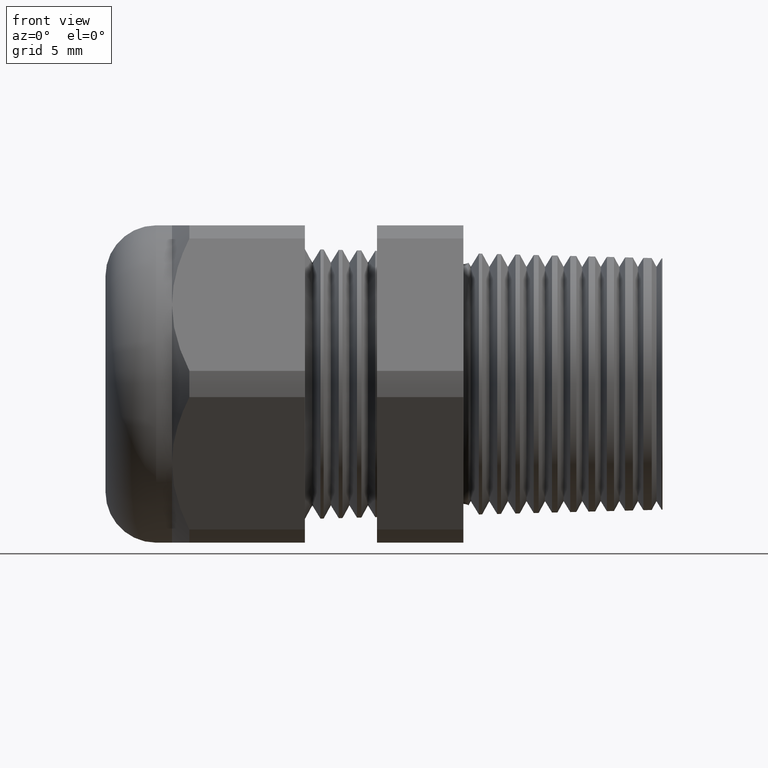
[diagram: clean part render]
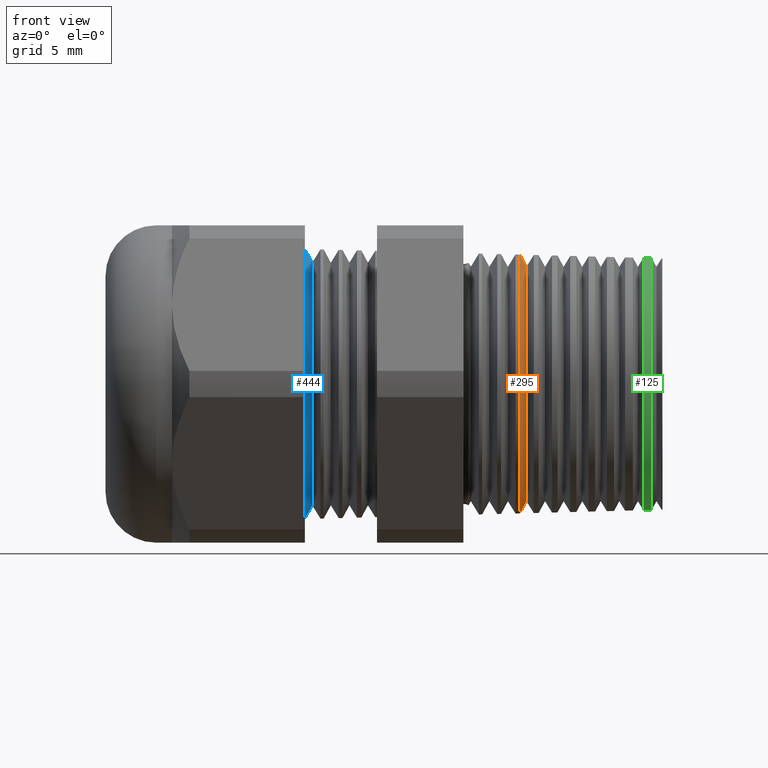
[diagram: same view with three faces highlighted in distinct colors, each labeled with its STEP entity id]
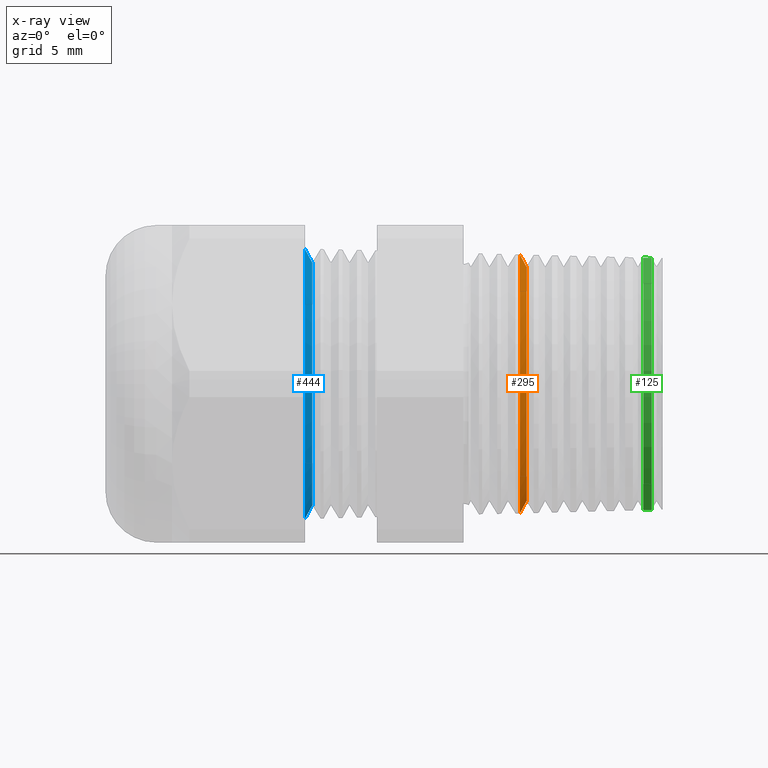
[diagram: x-ray of the same camera — body ghosted, the three highlighted faces saturated]
A machine part, front view with three faces highlighted in distinct colors.
The next image is the same camera in x-ray (body ghosted, the three faces saturated) — at least one of them is partly hidden behind the body in this view.
Their STEP definitions:

[orange] entity #295 — the highlighted conical surface has half-angle 61.5 deg.
#135 = EDGE_CURVE ( 'NONE', #3967, #3960, #993, .T. ) ;
#295 = ADVANCED_FACE ( 'NONE', ( #1293 ), #1288, .T. ) ;
#296 = EDGE_LOOP ( 'NONE', ( #297, #343, #345, #346 ) ) ;
#297 = ORIENTED_EDGE ( 'NONE', *, *, #3897, .F. ) ;
#343 = ORIENTED_EDGE ( 'NONE', *, *, #344, .F. ) ;
#344 = EDGE_CURVE ( 'NONE', #3968, #3964, #1361, .T. ) ;
#345 = ORIENTED_EDGE ( 'NONE', *, *, #3933, .T. ) ;
#346 = ORIENTED_EDGE ( 'NONE', *, *, #135, .T. ) ;
#993 = CIRCLE ( 'NONE', #1057, 0.3833240564830958100 ) ;
#1054 = DIRECTION ( 'NONE',  ( 0.0000000000000000000, 0.0000000000000000000, 1.000000000000000000 ) ) ;
#1055 = DIRECTION ( 'NONE',  ( 1.000000000000000000, 0.0000000000000000000, 0.0000000000000000000 ) ) ;
#1056 = CARTESIAN_POINT ( 'NONE',  ( -0.1426202286626725200, 0.0000000000000000000, 0.0000000000000000000 ) ) ;
#1057 = AXIS2_PLACEMENT_3D ( 'NONE', #1056, #1055, #1054 ) ;
#1284 = DIRECTION ( 'NONE',  ( -1.000000000000000000, 0.0000000000000000000, 0.0000000000000000000 ) ) ;
#1285 = CARTESIAN_POINT ( 'NONE',  ( -0.1449999999999999600, 0.0000000000000000000, 0.0000000000000000000 ) ) ;
#1286 = AXIS2_PLACEMENT_3D ( 'NONE', #1285, #1284, #1347 ) ;
#1288 = CONICAL_SURFACE ( 'NONE', #1286, 0.3877070500476024800, 1.073377489976514900 ) ;
#1293 = FACE_OUTER_BOUND ( 'NONE', #296, .T. ) ;
#1347 = DIRECTION ( 'NONE',  ( 0.0000000000000000000, 0.0000000000000000000, 1.000000000000000000 ) ) ;
#1358 = DIRECTION ( 'NONE',  ( 0.0000000000000000000, 0.0000000000000000000, -1.000000000000000000 ) ) ;
#1359 = DIRECTION ( 'NONE',  ( 1.000000000000000000, 0.0000000000000000000, 0.0000000000000000000 ) ) ;
#1360 = AXIS2_PLACEMENT_3D ( 'NONE', #1366, #1359, #1358 ) ;
#1361 = CIRCLE ( 'NONE', #1360, 0.3471162263224957200 ) ;
#1366 = CARTESIAN_POINT ( 'NONE',  ( -0.1229609809054342900, 0.0000000000000000000, 0.0000000000000000000 ) ) ;
#2877 = DIRECTION ( 'NONE',  ( -0.4771587602596063500, 1.076240564057396000E-016, -0.8788171126619663800 ) ) ;
#2878 = VECTOR ( 'NONE', #2877, 39.37007874015748900 ) ;
#2879 = CARTESIAN_POINT ( 'NONE',  ( -0.1449999999999999600, 4.748041978476590400E-017, -0.3877070500476024800 ) ) ;
#2880 = LINE ( 'NONE', #2879, #2878 ) ;
#2987 = DIRECTION ( 'NONE',  ( -0.4771587602596063500, 0.0000000000000000000, 0.8788171126619663800 ) ) ;
#2988 = VECTOR ( 'NONE', #2987, 39.37007874015748900 ) ;
#2989 = CARTESIAN_POINT ( 'NONE',  ( -0.1449999999999999600, 0.0000000000000000000, 0.3877070500476024800 ) ) ;
#2990 = LINE ( 'NONE', #2989, #2988 ) ;
#3000 = CARTESIAN_POINT ( 'NONE',  ( -0.1426202286626725200, 4.696441396846036300E-017, -0.3833240564830958100 ) ) ;
#3047 = CARTESIAN_POINT ( 'NONE',  ( -0.1229609809054342900, 0.0000000000000000000, 0.3471162263224957200 ) ) ;
#3048 = CARTESIAN_POINT ( 'NONE',  ( -0.1426202286626725200, 0.0000000000000000000, 0.3833240564830958100 ) ) ;
#3054 = CARTESIAN_POINT ( 'NONE',  ( -0.1229609809054342900, 4.472656771530776100E-017, -0.3471162263224957200 ) ) ;
#3897 = EDGE_CURVE ( 'NONE', #3964, #3960, #2880, .T. ) ;
#3933 = EDGE_CURVE ( 'NONE', #3968, #3967, #2990, .T. ) ;
#3960 = VERTEX_POINT ( 'NONE', #3000 ) ;
#3964 = VERTEX_POINT ( 'NONE', #3054 ) ;
#3967 = VERTEX_POINT ( 'NONE', #3048 ) ;
#3968 = VERTEX_POINT ( 'NONE', #3047 ) ;

[blue] entity #444 — the highlighted conical surface has half-angle 61.5 deg.
#441 = EDGE_CURVE ( 'NONE', #3443, #3427, #1542, .T. ) ;
#444 = ADVANCED_FACE ( 'NONE', ( #1538 ), #1537, .T. ) ;
#445 = EDGE_LOOP ( 'NONE', ( #446, #447, #448, #449 ) ) ;
#446 = ORIENTED_EDGE ( 'NONE', *, *, #3444, .F. ) ;
#447 = ORIENTED_EDGE ( 'NONE', *, *, #441, .F. ) ;
#448 = ORIENTED_EDGE ( 'NONE', *, *, #3599, .T. ) ;
#449 = ORIENTED_EDGE ( 'NONE', *, *, #450, .T. ) ;
#450 = EDGE_CURVE ( 'NONE', #3600, #3442, #1536, .T. ) ;
#1482 = CARTESIAN_POINT ( 'NONE',  ( -0.7574097998030713300, 0.0000000000000000000, 0.0000000000000000000 ) ) ;
#1528 = DIRECTION ( 'NONE',  ( 0.0000000000000000000, 0.0000000000000000000, -1.000000000000000000 ) ) ;
#1529 = DIRECTION ( 'NONE',  ( 1.000000000000000000, 0.0000000000000000000, 0.0000000000000000000 ) ) ;
#1530 = CARTESIAN_POINT ( 'NONE',  ( -0.7794488188976376200, 0.0000000000000000000, 0.0000000000000000000 ) ) ;
#1531 = AXIS2_PLACEMENT_3D ( 'NONE', #1530, #1529, #1528 ) ;
#1532 = DIRECTION ( 'NONE',  ( 0.0000000000000000000, 0.0000000000000000000, 1.000000000000000000 ) ) ;
#1533 = DIRECTION ( 'NONE',  ( -1.000000000000000000, 0.0000000000000000000, 0.0000000000000000000 ) ) ;
#1534 = CARTESIAN_POINT ( 'NONE',  ( -0.7794488188976376200, 0.0000000000000000000, 0.0000000000000000000 ) ) ;
#1535 = AXIS2_PLACEMENT_3D ( 'NONE', #1534, #1533, #1532 ) ;
#1536 = CIRCLE ( 'NONE', #1531, 0.3999999999999999700 ) ;
#1537 = CONICAL_SURFACE ( 'NONE', #1535, 0.3999999999999999700, 1.073377489976500500 ) ;
#1538 = FACE_OUTER_BOUND ( 'NONE', #445, .T. ) ;
#1539 = DIRECTION ( 'NONE',  ( 0.0000000000000000000, 0.0000000000000000000, -1.000000000000000000 ) ) ;
#1540 = DIRECTION ( 'NONE',  ( 1.000000000000000000, 0.0000000000000000000, 0.0000000000000000000 ) ) ;
#1541 = AXIS2_PLACEMENT_3D ( 'NONE', #1482, #1540, #1539 ) ;
#1542 = CIRCLE ( 'NONE', #1541, 0.3594091762748933800 ) ;
#2003 = CARTESIAN_POINT ( 'NONE',  ( -0.7574097998030713300, 0.0000000000000000000, -0.3594091762748933800 ) ) ;
#2028 = DIRECTION ( 'NONE',  ( -0.4771587602596191200, 1.076240564057387800E-016, -0.8788171126619595000 ) ) ;
#2029 = VECTOR ( 'NONE', #2028, 39.37007874015748100 ) ;
#2030 = CARTESIAN_POINT ( 'NONE',  ( -0.7794488188976376200, 4.898587196589412500E-017, -0.3999999999999999700 ) ) ;
#2031 = LINE ( 'NONE', #2030, #2029 ) ;
#2032 = CARTESIAN_POINT ( 'NONE',  ( -0.7574097998030713300, 4.642636718654026900E-017, 0.3594091762748933800 ) ) ;
#2033 = CARTESIAN_POINT ( 'NONE',  ( -0.7794488188976376200, 4.898587196589412500E-017, -0.3999999999999999700 ) ) ;
#2363 = CARTESIAN_POINT ( 'NONE',  ( -0.7794488188976376200, 0.0000000000000000000, 0.3999999999999999700 ) ) ;
#2364 = DIRECTION ( 'NONE',  ( -0.4771587602596191200, 0.0000000000000000000, 0.8788171126619595000 ) ) ;
#2365 = VECTOR ( 'NONE', #2364, 39.37007874015748100 ) ;
#2366 = CARTESIAN_POINT ( 'NONE',  ( -0.7794488188976376200, 0.0000000000000000000, 0.3999999999999999700 ) ) ;
#2371 = LINE ( 'NONE', #2366, #2365 ) ;
#3427 = VERTEX_POINT ( 'NONE', #2003 ) ;
#3442 = VERTEX_POINT ( 'NONE', #2033 ) ;
#3443 = VERTEX_POINT ( 'NONE', #2032 ) ;
#3444 = EDGE_CURVE ( 'NONE', #3427, #3442, #2031, .T. ) ;
#3599 = EDGE_CURVE ( 'NONE', #3443, #3600, #2371, .T. ) ;
#3600 = VERTEX_POINT ( 'NONE', #2363 ) ;

[green] entity #125 — the highlighted conical surface has half-angle 1.5 deg.
#106 = ORIENTED_EDGE ( 'NONE', *, *, #107, .F. ) ;
#107 = EDGE_CURVE ( 'NONE', #3777, #3774, #991, .T. ) ;
#125 = ADVANCED_FACE ( 'NONE', ( #1010 ), #1009, .T. ) ;
#126 = EDGE_LOOP ( 'NONE', ( #127, #128, #130, #106 ) ) ;
#127 = ORIENTED_EDGE ( 'NONE', *, *, #3685, .F. ) ;
#128 = ORIENTED_EDGE ( 'NONE', *, *, #129, .F. ) ;
#129 = EDGE_CURVE ( 'NONE', #3763, #3844, #1003, .T. ) ;
#130 = ORIENTED_EDGE ( 'NONE', *, *, #3519, .T. ) ;
#987 = DIRECTION ( 'NONE',  ( 0.0000000000000000000, 0.0000000000000000000, -1.000000000000000000 ) ) ;
#988 = DIRECTION ( 'NONE',  ( -1.000000000000000000, 0.0000000000000000000, 0.0000000000000000000 ) ) ;
#989 = CARTESIAN_POINT ( 'NONE',  ( 0.2233544997452917300, 0.0000000000000000000, 0.0000000000000000000 ) ) ;
#990 = AXIS2_PLACEMENT_3D ( 'NONE', #989, #988, #987 ) ;
#991 = CIRCLE ( 'NONE', #990, 0.3737406709487030000 ) ;
#1000 = DIRECTION ( 'NONE',  ( 0.0000000000000000000, 0.0000000000000000000, 1.000000000000000000 ) ) ;
#1001 = DIRECTION ( 'NONE',  ( 1.000000000000000000, 0.0000000000000000000, 0.0000000000000000000 ) ) ;
#1002 = AXIS2_PLACEMENT_3D ( 'NONE', #1008, #1001, #1000 ) ;
#1003 = CIRCLE ( 'NONE', #1002, 0.3730970714992474200 ) ;
#1004 = DIRECTION ( 'NONE',  ( 0.0000000000000000000, 0.0000000000000000000, 1.000000000000000000 ) ) ;
#1005 = DIRECTION ( 'NONE',  ( -1.000000000000000000, 0.0000000000000000000, 0.0000000000000000000 ) ) ;
#1006 = CARTESIAN_POINT ( 'NONE',  ( 0.2800000000000000800, 0.0000000000000000000, 0.0000000000000000000 ) ) ;
#1007 = AXIS2_PLACEMENT_3D ( 'NONE', #1006, #1005, #1004 ) ;
#1008 = CARTESIAN_POINT ( 'NONE',  ( 0.2479325711244247100, 0.0000000000000000000, 0.0000000000000000000 ) ) ;
#1009 = CONICAL_SURFACE ( 'NONE', #1007, 0.3722573563217862500, 0.02617993877990780800 ) ;
#1010 = FACE_OUTER_BOUND ( 'NONE', #126, .T. ) ;
#2194 = DIRECTION ( 'NONE',  ( -0.9996573249755573700, 0.0000000000000000000, 0.02617694830786601900 ) ) ;
#2195 = VECTOR ( 'NONE', #2194, 39.37007874015748100 ) ;
#2196 = CARTESIAN_POINT ( 'NONE',  ( 0.2800000000000000800, 0.0000000000000000000, 0.3722573563217862500 ) ) ;
#2201 = LINE ( 'NONE', #2196, #2195 ) ;
#2525 = DIRECTION ( 'NONE',  ( -0.9996573249755573700, 3.205751595667385000E-018, -0.02617694830786601900 ) ) ;
#2526 = VECTOR ( 'NONE', #2525, 39.37007874015748100 ) ;
#2527 = CARTESIAN_POINT ( 'NONE',  ( 0.2800000000000000800, 4.558837798785312400E-017, -0.3722573563217862500 ) ) ;
#2532 = LINE ( 'NONE', #2527, #2526 ) ;
#2625 = CARTESIAN_POINT ( 'NONE',  ( 0.2479325711244247100, 0.0000000000000000000, 0.3730970714992474200 ) ) ;
#2669 = CARTESIAN_POINT ( 'NONE',  ( 0.2233544997452917300, 4.577003163885133500E-017, -0.3737406709487030000 ) ) ;
#2675 = CARTESIAN_POINT ( 'NONE',  ( 0.2233544997452917300, 0.0000000000000000000, 0.3737406709487030000 ) ) ;
#2793 = CARTESIAN_POINT ( 'NONE',  ( 0.2479325711244247100, 4.573062253856589800E-017, -0.3730970714992474200 ) ) ;
#3519 = EDGE_CURVE ( 'NONE', #3763, #3774, #2201, .T. ) ;
#3685 = EDGE_CURVE ( 'NONE', #3844, #3777, #2532, .T. ) ;
#3763 = VERTEX_POINT ( 'NONE', #2625 ) ;
#3774 = VERTEX_POINT ( 'NONE', #2675 ) ;
#3777 = VERTEX_POINT ( 'NONE', #2669 ) ;
#3844 = VERTEX_POINT ( 'NONE', #2793 ) ;